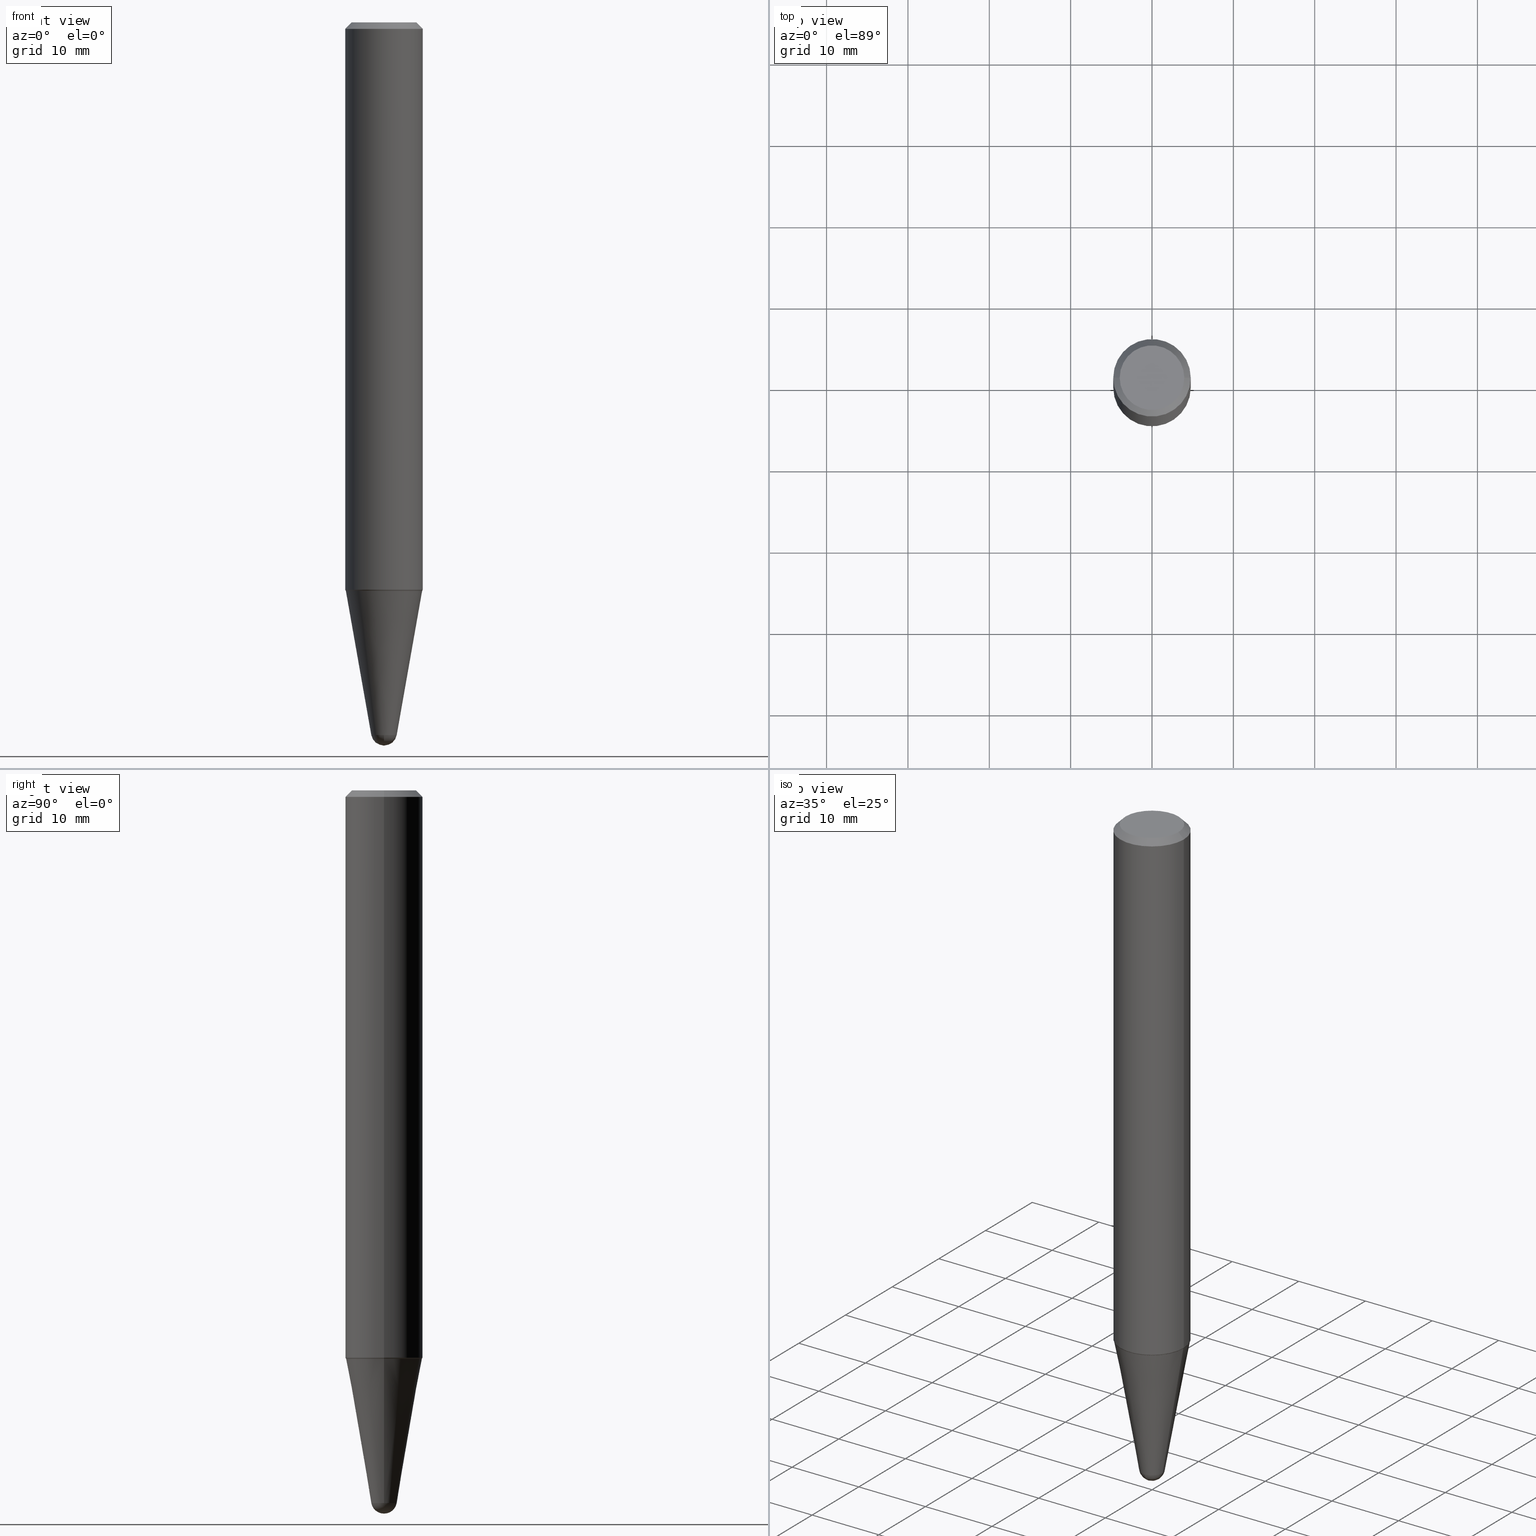
[diagram: canonical four-view strip — front | top / right | iso, engineering-drawing reading convention]
A machine part, canonical four-view strip (front | top / right | iso — engineering-drawing reading convention). The complete STEP part file that produces these views, byte-faithful:
ISO-10303-21;
HEADER;
FILE_DESCRIPTION (( 'STEP AP203' ),
    '1' );
FILE_NAME ('32483.STEP',
    '2024-03-04T15:26:35',
    ( '' ),
    ( '' ),
    'SwSTEP 2.0',
    'SolidWorks 2023',
    '' );
FILE_SCHEMA (( 'CONFIG_CONTROL_DESIGN' ));
ENDSEC;

DATA;
#1 = CARTESIAN_POINT ( 'NONE',  ( 0.1856889624799295535, -1.089648703580485923E-14, -2.749499999999999389 ) ) ;
#2 = VECTOR ( 'NONE', #138, 39.37007874015748143 ) ;
#3 = VERTEX_POINT ( 'NONE', #123 ) ;
#4 = FACE_OUTER_BOUND ( 'NONE', #43, .T. ) ;
#5 = ORIENTED_EDGE ( 'NONE', *, *, #425, .T. ) ;
#6 = ORIENTED_EDGE ( 'NONE', *, *, #195, .T. ) ;
#7 = AXIS2_PLACEMENT_3D ( 'NONE', #351, #434, #143 ) ;
#8 = FACE_OUTER_BOUND ( 'NONE', #262, .T. ) ;
#9 = DIRECTION ( 'NONE',  ( -0.1736481776669304145, 4.672282404182340767E-15, 0.9848077530122080203 ) ) ;
#10 = ORIENTED_EDGE ( 'NONE', *, *, #279, .T. ) ;
#11 = ADVANCED_FACE ( 'NONE', ( #113 ), #200, .T. ) ;
#12 = CARTESIAN_POINT ( 'NONE',  ( -4.373424968893228711E-16, -0.06155048456327506801, -3.448353011104182908 ) ) ;
#13 = ORIENTED_EDGE ( 'NONE', *, *, #273, .T. ) ;
#14 = CIRCLE ( 'NONE', #275, 0.06155048456326336903 ) ;
#15 = AXIS2_PLACEMENT_3D ( 'NONE', #400, #363, #102 ) ;
#16 = CARTESIAN_POINT ( 'NONE',  ( 1.440017168340129706E-44, -2.055962872295446805E-30, -5.888511702533292493E-16 ) ) ;
#17 = ORIENTED_EDGE ( 'NONE', *, *, #25, .F. ) ;
#18 = DIRECTION ( 'NONE',  ( -1.000000000000000000, 6.982962677686265922E-15, -4.883557194083112340E-29 ) ) ;
#19 = ADVANCED_FACE ( 'NONE', ( #415 ), #203, .T. ) ;
#20 = CALENDAR_DATE ( 2024, 4, 3 ) ;
#21 = CARTESIAN_POINT ( 'NONE',  ( 0.1856889624799295535, -1.089648703580485923E-14, -2.749499999999999389 ) ) ;
#22 = AXIS2_PLACEMENT_3D ( 'NONE', #84, #18, #366 ) ;
#23 = CONICAL_SURFACE ( 'NONE', #103, 0.1851889624799291090, 0.7853981633971751641 ) ;
#24 = DIRECTION ( 'NONE',  ( 1.000000000000000000, -6.982962677686260400E-15, 0.000000000000000000 ) ) ;
#25 = EDGE_CURVE ( 'NONE', #109, #199, #164, .T. ) ;
#26 = CALENDAR_DATE ( 2024, 4, 3 ) ;
#27 = DIRECTION ( 'NONE',  ( 1.000000000000000000, -6.982962677686266711E-15, 0.000000000000000000 ) ) ;
#28 = APPROVAL_DATE_TIME ( #341, #450 ) ;
#29 = CARTESIAN_POINT ( 'NONE',  ( 6.723816482606030598E-29, -9.599827941149225989E-15, -2.749499999999999389 ) ) ;
#30 = FACE_OUTER_BOUND ( 'NONE', #272, .T. ) ;
#31 = VECTOR ( 'NONE', #9, 39.37007874015748854 ) ;
#32 = AXIS2_PLACEMENT_3D ( 'NONE', #369, #442, #193 ) ;
#33 = CARTESIAN_POINT ( 'NONE',  ( 0.06155048456326336903, -1.168045736915459686E-14, -3.448353011104182908 ) ) ;
#34 = ADVANCED_FACE ( 'NONE', ( #227 ), #377, .T. ) ;
#35 = DIRECTION ( 'NONE',  ( -2.445468806185136597E-29, 3.491481338843145583E-15, 1.000000000000000000 ) ) ;
#36 = ORIENTED_EDGE ( 'NONE', *, *, #64, .T. ) ;
#37 = DIRECTION ( 'NONE',  ( -2.438088387897960049E-29, 3.491481338843145188E-15, 1.000000000000000000 ) ) ;
#38 = CONICAL_SURFACE ( 'NONE', #359, 0.1856889624799295535, 0.4363323129985916538 ) ;
#39 = VECTOR ( 'NONE', #118, 39.37007874015748143 ) ;
#40 = ADVANCED_FACE ( 'NONE', ( #280 ), #289, .T. ) ;
#41 = PLANE ( 'NONE',  #282 ) ;
#42 = PERSON_AND_ORGANIZATION_ROLE ( 'design_owner' ) ;
#43 = EDGE_LOOP ( 'NONE', ( #80, #414, #334, #219 ) ) ;
#44 = CARTESIAN_POINT ( 'NONE',  ( 0.1846889624799291363, -1.089124981379659235E-14, -2.750000000000000000 ) ) ;
#45 = CARTESIAN_POINT ( 'NONE',  ( -0.06155048456326336903, -1.160251769112441577E-14, -3.448353011104182908 ) ) ;
#46 = LOCAL_TIME ( 10, 26, 35.00000000000000000, #79 ) ;
#47 = FACE_OUTER_BOUND ( 'NONE', #70, .T. ) ;
#48 = CARTESIAN_POINT ( 'NONE',  ( 6.725039217009124520E-29, -9.601573681818649859E-15, -2.750000000000000000 ) ) ;
#49 = APPROVAL ( #207, 'UNSPECIFIED' ) ;
#50 =( NAMED_UNIT ( * ) PLANE_ANGLE_UNIT ( ) SI_UNIT ( $, .RADIAN. ) );
#51 = ORIENTED_EDGE ( 'NONE', *, *, #273, .F. ) ;
#52 = DIRECTION ( 'NONE',  ( -2.445468806185136597E-29, 3.491481338843145583E-15, 1.000000000000000000 ) ) ;
#53 = VERTEX_POINT ( 'NONE', #21 ) ;
#54 = CIRCLE ( 'NONE', #390, 0.1856889624799295535 ) ;
#55 = CALENDAR_DATE ( 2024, 4, 3 ) ;
#56 = EDGE_CURVE ( 'NONE', #215, #87, #259, .T. ) ;
#57 = DIRECTION ( 'NONE',  ( 1.000000000000000000, -6.982962677686265922E-15, 0.000000000000000000 ) ) ;
#58 = DIRECTION ( 'NONE',  ( -2.445468806185136877E-29, 3.491481338843145188E-15, 1.000000000000000000 ) ) ;
#59 = SHAPE_DEFINITION_REPRESENTATION ( #114, #412 ) ;
#60 = AXIS2_PLACEMENT_3D ( 'NONE', #48, #194, #332 ) ;
#61 = CARTESIAN_POINT ( 'NONE',  ( 7.642090019328561499E-31, -1.091087918388484350E-16, -0.03125000000000003469 ) ) ;
#62 = FACE_OUTER_BOUND ( 'NONE', #406, .T. ) ;
#63 = DIRECTION ( 'NONE',  ( -2.445468806185136597E-29, 3.491481338843145583E-15, 1.000000000000000000 ) ) ;
#64 = EDGE_CURVE ( 'NONE', #53, #111, #54, .T. ) ;
#65 = LINE ( 'NONE', #319, #126 ) ;
#66 = AXIS2_PLACEMENT_3D ( 'NONE', #69, #108, #460 ) ;
#67 = APPROVAL_PERSON_ORGANIZATION ( #245, #86, #91 ) ;
#68 = VERTEX_POINT ( 'NONE', #281 ) ;
#69 = CARTESIAN_POINT ( 'NONE',  ( 8.432839721369867924E-29, -1.203986018801382488E-14, -3.448353011104182908 ) ) ;
#70 = EDGE_LOOP ( 'NONE', ( #180, #401, #361, #300 ) ) ;
#71 = FACE_OUTER_BOUND ( 'NONE', #78, .T. ) ;
#72 = CC_DESIGN_PERSON_AND_ORGANIZATION_ASSIGNMENT ( #136, #170, ( #187 ) ) ;
#73 = DIRECTION ( 'NONE',  ( 1.000000000000000000, -6.982962677686265922E-15, 4.876176775795935793E-29 ) ) ;
#74 = ORIENTED_EDGE ( 'NONE', *, *, #350, .T. ) ;
#75 = AXIS2_PLACEMENT_3D ( 'NONE', #287, #186, #218 ) ;
#76 = CIRCLE ( 'NONE', #339, 0.1856889624799295535 ) ;
#77 = DIRECTION ( 'NONE',  ( -2.445468806185136597E-29, 3.491481338843145583E-15, 1.000000000000000000 ) ) ;
#78 = EDGE_LOOP ( 'NONE', ( #340, #121, #197, #308 ) ) ;
#79 = COORDINATED_UNIVERSAL_TIME_OFFSET ( 5, 0, .BEHIND. ) ;
#80 = ORIENTED_EDGE ( 'NONE', *, *, #56, .T. ) ;
#81 = EDGE_CURVE ( 'NONE', #68, #104, #175, .T. ) ;
#82 = VERTEX_POINT ( 'NONE', #348 ) ;
#83 = CARTESIAN_POINT ( 'NONE',  ( -0.1851889624799291090, -8.285726961488016883E-15, -2.750000000000000000 ) ) ;
#84 = CARTESIAN_POINT ( 'NONE',  ( 8.698928373755703197E-29, -1.158290521407307856E-14, -3.437499999999999556 ) ) ;
#85 = EDGE_LOOP ( 'NONE', ( #435, #5 ) ) ;
#86 = APPROVAL ( #418, 'UNSPECIFIED' ) ;
#87 = VERTEX_POINT ( 'NONE', #452 ) ;
#88 = DIRECTION ( 'NONE',  ( -2.445468806185136597E-29, 3.491481338843145583E-15, 1.000000000000000000 ) ) ;
#89 = DATE_AND_TIME ( #26, #184 ) ;
#90 = DIRECTION ( 'NONE',  ( -1.000000000000000000, 6.982962677686266711E-15, 0.000000000000000000 ) ) ;
#91 = APPROVAL_ROLE ( '' ) ;
#92 = CARTESIAN_POINT ( 'NONE',  ( -0.1874999999999999722, -3.515420659890972439E-15, -0.03125000000000003469 ) ) ;
#93 = PERSON_AND_ORGANIZATION_ROLE ( 'creator' ) ;
#94 = AXIS2_PLACEMENT_3D ( 'NONE', #105, #37, #73 ) ;
#95 = LINE ( 'NONE', #380, #321 ) ;
#96 = APPROVAL_DATE_TIME ( #129, #49 ) ;
#97 = CARTESIAN_POINT ( 'NONE',  ( 1.440017168340129706E-44, -2.055962872295446805E-30, -5.888511702533292493E-16 ) ) ;
#98 = CC_DESIGN_PERSON_AND_ORGANIZATION_ASSIGNMENT ( #131, #278, ( #112 ) ) ;
#99 = CARTESIAN_POINT ( 'NONE',  ( 6.725039217009124520E-29, -9.601573681818649859E-15, -2.750000000000000000 ) ) ;
#100 = ORIENTED_EDGE ( 'NONE', *, *, #159, .T. ) ;
#101 = CIRCLE ( 'NONE', #243, 0.06155048456326336903 ) ;
#102 = DIRECTION ( 'NONE',  ( 1.000000000000000000, -6.982962677686268288E-15, 0.000000000000000000 ) ) ;
#103 = AXIS2_PLACEMENT_3D ( 'NONE', #154, #52, #269 ) ;
#104 = VERTEX_POINT ( 'NONE', #92 ) ;
#105 = CARTESIAN_POINT ( 'NONE',  ( 6.725039217009124520E-29, -9.601573681818649859E-15, -2.750000000000000000 ) ) ;
#106 = EDGE_CURVE ( 'NONE', #87, #215, #305, .T. ) ;
#107 = ORIENTED_EDGE ( 'NONE', *, *, #411, .F. ) ;
#108 = DIRECTION ( 'NONE',  ( -2.445468806185136597E-29, 3.491481338843145583E-15, 1.000000000000000000 ) ) ;
#109 = VERTEX_POINT ( 'NONE', #239 ) ;
#110 = LINE ( 'NONE', #176, #391 ) ;
#111 = VERTEX_POINT ( 'NONE', #417 ) ;
#112 = SECURITY_CLASSIFICATION ( '', '', #376 ) ;
#113 = FACE_OUTER_BOUND ( 'NONE', #257, .T. ) ;
#114 = PRODUCT_DEFINITION_SHAPE ( 'NONE', 'NONE',  #187 ) ;
#115 = EDGE_CURVE ( 'NONE', #199, #447, #327, .T. ) ;
#116 =( NAMED_UNIT ( * ) SI_UNIT ( $, .STERADIAN. ) SOLID_ANGLE_UNIT ( ) );
#117 = ORIENTED_EDGE ( 'NONE', *, *, #115, .T. ) ;
#118 = DIRECTION ( 'NONE',  ( -0.7071067811863543939, 7.493145998869656807E-15, 0.7071067811867406405 ) ) ;
#119 = ORIENTED_EDGE ( 'NONE', *, *, #242, .F. ) ;
#120 = AXIS2_PLACEMENT_3D ( 'NONE', #169, #246, #317 ) ;
#121 = ORIENTED_EDGE ( 'NONE', *, *, #106, .T. ) ;
#122 = EDGE_CURVE ( 'NONE', #111, #87, #313, .T. ) ;
#123 = CARTESIAN_POINT ( 'NONE',  ( 0.1562500000000004163, -1.233702489286408510E-15, -5.888511702533211635E-16 ) ) ;
#124 = PERSON_AND_ORGANIZATION ( #284, #201 ) ;
#125 = CARTESIAN_POINT ( 'NONE',  ( 7.642090019328561499E-31, -1.091087918388484350E-16, -0.03125000000000003469 ) ) ;
#126 = VECTOR ( 'NONE', #177, 39.37007874015748854 ) ;
#127 = AXIS2_PLACEMENT_3D ( 'NONE', #61, #210, #27 ) ;
#128 = APPROVAL_PERSON_ORGANIZATION ( #404, #450, #158 ) ;
#129 = DATE_AND_TIME ( #55, #459 ) ;
#130 = CARTESIAN_POINT ( 'NONE',  ( 6.714318813664270048E-29, -9.586267787043478574E-15, -2.745616217504904810 ) ) ;
#131 = PERSON_AND_ORGANIZATION ( #284, #201 ) ;
#132 = EDGE_CURVE ( 'NONE', #215, #68, #95, .T. ) ;
#133 = CARTESIAN_POINT ( 'NONE',  ( -0.1846889624799291363, -8.289279675166815415E-15, -2.750000000000000000 ) ) ;
#134 = DATE_AND_TIME ( #204, #353 ) ;
#135 = LINE ( 'NONE', #458, #2 ) ;
#136 = PERSON_AND_ORGANIZATION ( #284, #201 ) ;
#137 = AXIS2_PLACEMENT_3D ( 'NONE', #229, #371, #445 ) ;
#138 = DIRECTION ( 'NONE',  ( -0.7071067811865487940, 2.468850131082270471E-15, -0.7071067811865462405 ) ) ;
#139 = CARTESIAN_POINT ( 'NONE',  ( -1.450455682483482035E-44, 2.070866303999251778E-30, 5.931196827434296760E-16 ) ) ;
#140 = DIRECTION ( 'NONE',  ( -1.000000000000000000, 6.982962677686265922E-15, -4.876176775795935793E-29 ) ) ;
#141 = ORIENTED_EDGE ( 'NONE', *, *, #106, .F. ) ;
#142 = CLOSED_SHELL ( 'NONE', ( #11, #318, #346, #34, #309, #403, #294, #381, #40, #315 ) ) ;
#143 = DIRECTION ( 'NONE',  ( -7.105427357601000281E-15, -1.000000000000000000, 0.000000000000000000 ) ) ;
#144 = CONICAL_SURFACE ( 'NONE', #15, 0.1856889624799295535, 0.4363323129985916538 ) ;
#145 = ORIENTED_EDGE ( 'NONE', *, *, #396, .F. ) ;
#146 = DIRECTION ( 'NONE',  ( -2.445468806185136597E-29, 3.491481338843145583E-15, 1.000000000000000000 ) ) ;
#147 = ORIENTED_EDGE ( 'NONE', *, *, #153, .F. ) ;
#148 = DIRECTION ( 'NONE',  ( -2.445468806185136597E-29, 3.491481338843145583E-15, 1.000000000000000000 ) ) ;
#149 = MANIFOLD_SOLID_BREP ( 'Body-Move/Copy2[1]', #337 ) ;
#150 = ORIENTED_EDGE ( 'NONE', *, *, #373, .T. ) ;
#151 = CIRCLE ( 'NONE', #182, 0.1562500000000004163 ) ;
#152 = VECTOR ( 'NONE', #198, 39.37007874015748143 ) ;
#153 = EDGE_CURVE ( 'NONE', #338, #288, #234, .T. ) ;
#154 = CARTESIAN_POINT ( 'NONE',  ( 6.725039217009124520E-29, -9.601573681818649859E-15, -2.750000000000000000 ) ) ;
#155 = ORIENTED_EDGE ( 'NONE', *, *, #331, .F. ) ;
#156 = CARTESIAN_POINT ( 'NONE',  ( 8.698928373755703197E-29, -1.158290521407307856E-14, -3.437499999999999556 ) ) ;
#157 = ORIENTED_EDGE ( 'NONE', *, *, #251, .T. ) ;
#158 = APPROVAL_ROLE ( '' ) ;
#159 = EDGE_CURVE ( 'NONE', #265, #82, #101, .T. ) ;
#160 = ORIENTED_EDGE ( 'NONE', *, *, #56, .F. ) ;
#161 = CONICAL_SURFACE ( 'NONE', #120, 0.06155048456326336903, 0.1745329251994330311 ) ;
#162 = DIRECTION ( 'NONE',  ( 1.000000000000000000, -6.982962677686266711E-15, 4.891558762689331823E-29 ) ) ;
#163 = ORIENTED_EDGE ( 'NONE', *, *, #396, .T. ) ;
#164 = LINE ( 'NONE', #45, #31 ) ;
#165 = CARTESIAN_POINT ( 'NONE',  ( 6.714318813664270048E-29, -9.586267787043478574E-15, -2.745616217504904810 ) ) ;
#166 = CIRCLE ( 'NONE', #66, 0.06155048456326336903 ) ;
#167 = ADVANCED_FACE ( 'NONE', ( #30 ), #161, .T. ) ;
#168 = CC_DESIGN_SECURITY_CLASSIFICATION ( #112, ( #250 ) ) ;
#169 = CARTESIAN_POINT ( 'NONE',  ( 8.432839721369867924E-29, -1.203986018801382488E-14, -3.448353011104182908 ) ) ;
#170 = PERSON_AND_ORGANIZATION_ROLE ( 'creator' ) ;
#171 = CARTESIAN_POINT ( 'NONE',  ( 8.432839721369867924E-29, -1.203986018801382488E-14, -3.448353011104182908 ) ) ;
#172 = APPROVAL_ROLE ( '' ) ;
#173 = CC_DESIGN_PERSON_AND_ORGANIZATION_ASSIGNMENT ( #124, #93, ( #250 ) ) ;
#174 = DIRECTION ( 'NONE',  ( -2.445468806185136597E-29, 3.491481338843145583E-15, 1.000000000000000000 ) ) ;
#175 = CIRCLE ( 'NONE', #451, 0.1874999999999999722 ) ;
#176 = CARTESIAN_POINT ( 'NONE',  ( -0.1875000000000001943, 1.332267629550191398E-15, 5.931196827434205055E-16 ) ) ;
#177 = DIRECTION ( 'NONE',  ( 0.1736481776669304145, 2.225859148293765253E-15, 0.9848077530122080203 ) ) ;
#178 = DIMENSIONAL_EXPONENTS ( 1.000000000000000000, 0.000000000000000000, 0.000000000000000000, 0.000000000000000000, 0.000000000000000000, 0.000000000000000000, 0.000000000000000000 ) ;
#179 = DIRECTION ( 'NONE',  ( 1.000000000000000000, -6.982962677686260400E-15, 0.000000000000000000 ) ) ;
#180 = ORIENTED_EDGE ( 'NONE', *, *, #462, .F. ) ;
#181 = CC_DESIGN_DATE_AND_TIME_ASSIGNMENT ( #134, #347, ( #112 ) ) ;
#182 = AXIS2_PLACEMENT_3D ( 'NONE', #97, #247, #213 ) ;
#183 = CARTESIAN_POINT ( 'NONE',  ( -1.450455682483482035E-44, 2.070866303999251778E-30, 5.931196827434296760E-16 ) ) ;
#184 = LOCAL_TIME ( 10, 26, 35.00000000000000000, #382 ) ;
#185 = ORIENTED_EDGE ( 'NONE', *, *, #122, .F. ) ;
#186 = DIRECTION ( 'NONE',  ( 2.438088387897960049E-29, -3.491481338843145188E-15, -1.000000000000000000 ) ) ;
#187 = PRODUCT_DEFINITION ( 'UNKNOWN', '', #250, #402 ) ;
#188 = LINE ( 'NONE', #266, #152 ) ;
#189 = CIRCLE ( 'NONE', #416, 0.1851889624799291090 ) ;
#190 = EDGE_LOOP ( 'NONE', ( #36, #233, #160, #364 ) ) ;
#191 = VECTOR ( 'NONE', #224, 39.37007874015748143 ) ;
#192 = AXIS2_PLACEMENT_3D ( 'NONE', #183, #324, #374 ) ;
#193 = DIRECTION ( 'NONE',  ( 1.000000000000000000, 0.000000000000000000, 0.000000000000000000 ) ) ;
#194 = DIRECTION ( 'NONE',  ( -2.445468806185136597E-29, 3.491481338843145583E-15, 1.000000000000000000 ) ) ;
#195 = EDGE_CURVE ( 'NONE', #288, #338, #189, .T. ) ;
#196 = MECHANICAL_CONTEXT ( 'NONE', #244, 'mechanical' ) ;
#197 = ORIENTED_EDGE ( 'NONE', *, *, #132, .T. ) ;
#198 = DIRECTION ( 'NONE',  ( 0.7071067811865487940, -7.319954787623260779E-15, -0.7071067811865462405 ) ) ;
#199 = VERTEX_POINT ( 'NONE', #133 ) ;
#200 = CONICAL_SURFACE ( 'NONE', #389, 0.1874999999999999722, 0.7853981633974501664 ) ;
#201 = ORGANIZATION ( 'UNSPECIFIED', 'UNSPECIFIED', '' ) ;
#202 = COORDINATED_UNIVERSAL_TIME_OFFSET ( 5, 0, .BEHIND. ) ;
#203 = SPHERICAL_SURFACE ( 'NONE', #22, 0.06250000000000012490 ) ;
#204 = CALENDAR_DATE ( 2024, 4, 3 ) ;
#205 = CARTESIAN_POINT ( 'NONE',  ( 6.725039217009124520E-29, -9.601573681818649859E-15, -2.750000000000000000 ) ) ;
#206 = EDGE_CURVE ( 'NONE', #104, #68, #226, .T. ) ;
#207 = APPROVAL_STATUS ( 'not_yet_approved' ) ;
#208 = CARTESIAN_POINT ( 'NONE',  ( 6.725039217009124520E-29, -9.601573681818649859E-15, -2.750000000000000000 ) ) ;
#209 = AXIS2_PLACEMENT_3D ( 'NONE', #208, #344, #57 ) ;
#210 = DIRECTION ( 'NONE',  ( -2.445468806185136597E-29, 3.491481338843145583E-15, 1.000000000000000000 ) ) ;
#211 = ADVANCED_FACE ( 'NONE', ( #62 ), #367, .T. ) ;
#212 = DIRECTION ( 'NONE',  ( 1.000000000000000000, -6.982962677686268288E-15, 0.000000000000000000 ) ) ;
#213 = DIRECTION ( 'NONE',  ( 1.000000000000000000, -6.982962677686266711E-15, 4.891558762689331823E-29 ) ) ;
#214 = AXIS2_PLACEMENT_3D ( 'NONE', #252, #35, #179 ) ;
#215 = VERTEX_POINT ( 'NONE', #457 ) ;
#216 = DIRECTION ( 'NONE',  ( 1.000000000000000000, -6.982962677686260400E-15, 0.000000000000000000 ) ) ;
#217 = EDGE_CURVE ( 'NONE', #223, #104, #135, .T. ) ;
#218 = DIRECTION ( 'NONE',  ( -1.000000000000000000, 6.982962677686265922E-15, -4.876176775795935793E-29 ) ) ;
#219 = ORIENTED_EDGE ( 'NONE', *, *, #132, .F. ) ;
#220 = AXIS2_PLACEMENT_3D ( 'NONE', #171, #349, #316 ) ;
#221 = CARTESIAN_POINT ( 'NONE',  ( 6.723816482606030598E-29, -9.599827941149225989E-15, -2.749499999999999389 ) ) ;
#222 = DIRECTION ( 'NONE',  ( 1.000000000000000000, -6.982962677686268288E-15, 0.000000000000000000 ) ) ;
#223 = VERTEX_POINT ( 'NONE', #427 ) ;
#224 = DIRECTION ( 'NONE',  ( 0.7071067811863543939, -2.468850131080234027E-15, 0.7071067811867406405 ) ) ;
#225 = EDGE_LOOP ( 'NONE', ( #6, #163, #270, #440 ) ) ;
#226 = CIRCLE ( 'NONE', #127, 0.1874999999999999722 ) ;
#227 = FACE_OUTER_BOUND ( 'NONE', #225, .T. ) ;
#228 =( GEOMETRIC_REPRESENTATION_CONTEXT ( 3 ) GLOBAL_UNCERTAINTY_ASSIGNED_CONTEXT ( ( #362 ) ) GLOBAL_UNIT_ASSIGNED_CONTEXT ( ( #413, #50, #116 ) ) REPRESENTATION_CONTEXT ( 'NONE', 'WORKASPACE' ) );
#229 = CARTESIAN_POINT ( 'NONE',  ( 8.698928373755703197E-29, -1.158290521407307856E-14, -3.437499999999999556 ) ) ;
#230 = ORIENTED_EDGE ( 'NONE', *, *, #206, .T. ) ;
#231 = ORIENTED_EDGE ( 'NONE', *, *, #331, .T. ) ;
#232 = APPLICATION_PROTOCOL_DEFINITION ( 'international standard', 'config_control_design', 1994, #237 ) ;
#233 = ORIENTED_EDGE ( 'NONE', *, *, #122, .T. ) ;
#234 = CIRCLE ( 'NONE', #209, 0.1851889624799291090 ) ;
#235 = AXIS2_PLACEMENT_3D ( 'NONE', #16, #335, #162 ) ;
#236 = EDGE_CURVE ( 'NONE', #223, #3, #151, .T. ) ;
#237 = APPLICATION_CONTEXT ( 'configuration controlled 3d designs of mechanical parts and assemblies' ) ;
#238 = DIRECTION ( 'NONE',  ( 1.000000000000000000, -6.982962677686269866E-15, 0.000000000000000000 ) ) ;
#239 = CARTESIAN_POINT ( 'NONE',  ( -0.06155048456326336903, -9.945898683145615595E-15, -3.448353011104182908 ) ) ;
#240 = APPROVAL_DATE_TIME ( #314, #86 ) ;
#241 = CARTESIAN_POINT ( 'NONE',  ( 8.432839721369867924E-29, -1.203986018801382488E-14, -3.448353011104182908 ) ) ;
#242 = EDGE_CURVE ( 'NONE', #441, #446, #399, .T. ) ;
#243 = AXIS2_PLACEMENT_3D ( 'NONE', #241, #63, #24 ) ;
#244 = APPLICATION_CONTEXT ( 'configuration controlled 3d designs of mechanical parts and assemblies' ) ;
#245 = PERSON_AND_ORGANIZATION ( #284, #201 ) ;
#246 = DIRECTION ( 'NONE',  ( -2.445468806185136597E-29, 3.491481338843145583E-15, 1.000000000000000000 ) ) ;
#247 = DIRECTION ( 'NONE',  ( -2.445468806185136597E-29, 3.491481338843145583E-15, 1.000000000000000000 ) ) ;
#248 = FACE_OUTER_BOUND ( 'NONE', #358, .T. ) ;
#249 = CIRCLE ( 'NONE', #430, 0.1846889624799291363 ) ;
#250 = PRODUCT_DEFINITION_FORMATION_WITH_SPECIFIED_SOURCE ( 'ANY', '', #407, .NOT_KNOWN. ) ;
#251 = EDGE_CURVE ( 'NONE', #82, #109, #14, .T. ) ;
#252 = CARTESIAN_POINT ( 'NONE',  ( 8.432839721369867924E-29, -1.203986018801382488E-14, -3.448353011104182908 ) ) ;
#253 = ORIENTED_EDGE ( 'NONE', *, *, #115, .F. ) ;
#254 = CYLINDRICAL_SURFACE ( 'NONE', #384, 0.1875000000000001943 ) ;
#255 = ORIENTED_EDGE ( 'NONE', *, *, #195, .F. ) ;
#256 = DIRECTION ( 'NONE',  ( 1.000000000000000000, -6.982962677686268288E-15, 0.000000000000000000 ) ) ;
#257 = EDGE_LOOP ( 'NONE', ( #433, #306, #405, #330 ) ) ;
#258 = EDGE_CURVE ( 'NONE', #446, #265, #166, .T. ) ;
#259 = CIRCLE ( 'NONE', #408, 0.1875000000000003608 ) ;
#260 = CARTESIAN_POINT ( 'NONE',  ( -0.1851889624799291090, -8.283077734313903315E-15, -2.750000000000000000 ) ) ;
#261 = CIRCLE ( 'NONE', #214, 0.06155048456326336903 ) ;
#262 = EDGE_LOOP ( 'NONE', ( #145, #375, #388, #155 ) ) ;
#263 = APPLICATION_PROTOCOL_DEFINITION ( 'international standard', 'config_control_design', 1994, #244 ) ;
#264 = ORIENTED_EDGE ( 'NONE', *, *, #217, .T. ) ;
#265 = VERTEX_POINT ( 'NONE', #33 ) ;
#266 = CARTESIAN_POINT ( 'NONE',  ( 0.1874999999999999722, -1.395452166421010480E-15, -0.03125000000000003469 ) ) ;
#267 = CC_DESIGN_DATE_AND_TIME_ASSIGNMENT ( #89, #283, ( #187 ) ) ;
#268 = EDGE_LOOP ( 'NONE', ( #107, #410, #264, #230 ) ) ;
#269 = DIRECTION ( 'NONE',  ( 1.000000000000000000, -6.982962677686265922E-15, 0.000000000000000000 ) ) ;
#270 = ORIENTED_EDGE ( 'NONE', *, *, #64, .F. ) ;
#271 = CARTESIAN_POINT ( 'NONE',  ( 0.1851889624799291090, -1.089474129513543694E-14, -2.750000000000000000 ) ) ;
#272 = EDGE_LOOP ( 'NONE', ( #157, #398, #372, #51, #100 ) ) ;
#273 = EDGE_CURVE ( 'NONE', #265, #447, #65, .T. ) ;
#274 = DIRECTION ( 'NONE',  ( -2.445468806185136597E-29, 3.491481338843145583E-15, 1.000000000000000000 ) ) ;
#275 = AXIS2_PLACEMENT_3D ( 'NONE', #461, #146, #216 ) ;
#276 = APPROVAL_PERSON_ORGANIZATION ( #277, #49, #172 ) ;
#277 = PERSON_AND_ORGANIZATION ( #284, #201 ) ;
#278 = PERSON_AND_ORGANIZATION_ROLE ( 'classification_officer' ) ;
#279 = EDGE_CURVE ( 'NONE', #447, #199, #249, .T. ) ;
#280 = FACE_OUTER_BOUND ( 'NONE', #268, .T. ) ;
#281 = CARTESIAN_POINT ( 'NONE',  ( 0.1874999999999999722, -1.418414293905023123E-15, -0.03125000000000003469 ) ) ;
#282 = AXIS2_PLACEMENT_3D ( 'NONE', #397, #291, #140 ) ;
#283 = DATE_TIME_ROLE ( 'creation_date' ) ;
#284 = PERSON ( 'UNSPECIFIED', 'UNSPECIFIED', 'UNSPECIFIED', ('UNSPECIFIED'), ('UNSPECIFIED'), ('UNSPECIFIED') ) ;
#285 = DIRECTION ( 'NONE',  ( 1.000000000000000000, -6.982962677686266711E-15, 0.000000000000000000 ) ) ;
#286 = DIRECTION ( 'NONE',  ( -2.445468806185136877E-29, 3.491481338843145188E-15, 1.000000000000000000 ) ) ;
#287 = CARTESIAN_POINT ( 'NONE',  ( 7.200085841700648531E-45, -1.027981436147723403E-30, -2.944255851266646246E-16 ) ) ;
#288 = VERTEX_POINT ( 'NONE', #293 ) ;
#289 = CONICAL_SURFACE ( 'NONE', #352, 0.1874999999999999722, 0.7853981633974501664 ) ;
#290 = LOCAL_TIME ( 10, 26, 35.00000000000000000, #202 ) ;
#291 = DIRECTION ( 'NONE',  ( 2.438088387897960049E-29, -3.491481338843145188E-15, -1.000000000000000000 ) ) ;
#292 = ORIENTED_EDGE ( 'NONE', *, *, #258, .F. ) ;
#293 = CARTESIAN_POINT ( 'NONE',  ( 0.1851889624799291090, -1.089474129513543694E-14, -2.750000000000000000 ) ) ;
#294 = ADVANCED_FACE ( 'NONE', ( #295 ), #38, .T. ) ;
#295 = FACE_OUTER_BOUND ( 'NONE', #395, .T. ) ;
#296 = ORIENTED_EDGE ( 'NONE', *, *, #258, .T. ) ;
#297 = LINE ( 'NONE', #83, #39 ) ;
#298 = CC_DESIGN_APPROVAL ( #86, ( #112 ) ) ;
#299 = LENGTH_MEASURE_WITH_UNIT ( LENGTH_MEASURE( 0.02539999999999999897 ), #302 );
#300 = ORIENTED_EDGE ( 'NONE', *, *, #251, .F. ) ;
#301 = ADVANCED_FACE ( 'NONE', ( #248 ), #41, .F. ) ;
#302 =( LENGTH_UNIT ( ) NAMED_UNIT ( * ) SI_UNIT ( $, .METRE. ) );
#303 = DIRECTION ( 'NONE',  ( -1.000000000000000000, 6.982962677686266711E-15, 0.000000000000000000 ) ) ;
#304 = PERSON_AND_ORGANIZATION ( #284, #201 ) ;
#305 = CIRCLE ( 'NONE', #437, 0.1875000000000003608 ) ;
#306 = ORIENTED_EDGE ( 'NONE', *, *, #411, .T. ) ;
#307 = SPHERICAL_SURFACE ( 'NONE', #379, 0.06250000000000012490 ) ;
#308 = ORIENTED_EDGE ( 'NONE', *, *, #206, .F. ) ;
#309 = ADVANCED_FACE ( 'NONE', ( #392 ), #326, .F. ) ;
#310 = MANIFOLD_SOLID_BREP ( 'Body-Move/Copy2[2]', #142 ) ;
#311 = CARTESIAN_POINT ( 'NONE',  ( 7.642090019328561499E-31, -1.091087918388484350E-16, -0.03125000000000003469 ) ) ;
#312 = DIRECTION ( 'NONE',  ( -2.445468806185136597E-29, 3.491481338843145583E-15, 1.000000000000000000 ) ) ;
#313 = LINE ( 'NONE', #386, #424 ) ;
#314 = DATE_AND_TIME ( #20, #290 ) ;
#315 = ADVANCED_FACE ( 'NONE', ( #354 ), #432, .F. ) ;
#316 = DIRECTION ( 'NONE',  ( 1.000000000000000000, -6.982962677686260400E-15, 0.000000000000000000 ) ) ;
#317 = DIRECTION ( 'NONE',  ( 1.000000000000000000, -6.982962677686260400E-15, 0.000000000000000000 ) ) ;
#318 = ADVANCED_FACE ( 'NONE', ( #4 ), #254, .T. ) ;
#319 = CARTESIAN_POINT ( 'NONE',  ( 0.06155048456326336903, -1.246966492451259664E-14, -3.448353011104182908 ) ) ;
#320 = LINE ( 'NONE', #1, #322 ) ;
#321 = VECTOR ( 'NONE', #58, 39.37007874015748143 ) ;
#322 = VECTOR ( 'NONE', #394, 39.37007874015748143 ) ;
#323 = EDGE_CURVE ( 'NONE', #87, #104, #110, .T. ) ;
#324 = DIRECTION ( 'NONE',  ( -2.445468806185136597E-29, 3.491481338843145583E-15, 1.000000000000000000 ) ) ;
#325 = EDGE_LOOP ( 'NONE', ( #119, #356, #444, #292 ) ) ;
#326 = PLANE ( 'NONE',  #94 ) ;
#327 = CIRCLE ( 'NONE', #345, 0.1846889624799291363 ) ;
#328 = DIRECTION ( 'NONE',  ( 6.982962677686265922E-15, 1.000000000000000000, 0.000000000000000000 ) ) ;
#329 = CIRCLE ( 'NONE', #137, 0.06250000000000012490 ) ;
#330 = ORIENTED_EDGE ( 'NONE', *, *, #217, .F. ) ;
#331 = EDGE_CURVE ( 'NONE', #111, #53, #76, .T. ) ;
#332 = DIRECTION ( 'NONE',  ( 1.000000000000000000, -6.982962677686265922E-15, 0.000000000000000000 ) ) ;
#333 = APPROVAL_STATUS ( 'not_yet_approved' ) ;
#334 = ORIENTED_EDGE ( 'NONE', *, *, #81, .F. ) ;
#335 = DIRECTION ( 'NONE',  ( -2.445468806185136597E-29, 3.491481338843145583E-15, 1.000000000000000000 ) ) ;
#336 = CC_DESIGN_PERSON_AND_ORGANIZATION_ASSIGNMENT ( #304, #42, ( #407 ) ) ;
#337 = CLOSED_SHELL ( 'NONE', ( #167, #456, #19, #211, #301 ) ) ;
#338 = VERTEX_POINT ( 'NONE', #260 ) ;
#339 = AXIS2_PLACEMENT_3D ( 'NONE', #429, #355, #222 ) ;
#340 = ORIENTED_EDGE ( 'NONE', *, *, #323, .F. ) ;
#341 = DATE_AND_TIME ( #426, #46 ) ;
#342 = DIRECTION ( 'NONE',  ( 2.445468806185136597E-29, -3.491481338843145583E-15, -1.000000000000000000 ) ) ;
#343 = PERSON_AND_ORGANIZATION_ROLE ( 'design_supplier' ) ;
#344 = DIRECTION ( 'NONE',  ( -2.445468806185136597E-29, 3.491481338843145583E-15, 1.000000000000000000 ) ) ;
#345 = AXIS2_PLACEMENT_3D ( 'NONE', #205, #88, #212 ) ;
#346 = ADVANCED_FACE ( 'NONE', ( #428 ), #144, .T. ) ;
#347 = DATE_TIME_ROLE ( 'classification_date' ) ;
#348 = CARTESIAN_POINT ( 'NONE',  ( 4.298047364988575990E-16, 0.06155048456325139944, -3.448353011104182908 ) ) ;
#349 = DIRECTION ( 'NONE',  ( -2.445468806185136597E-29, 3.491481338843145583E-15, 1.000000000000000000 ) ) ;
#350 = EDGE_CURVE ( 'NONE', #109, #446, #261, .T. ) ;
#351 = CARTESIAN_POINT ( 'NONE',  ( 8.698928373755703197E-29, -1.158290521407307856E-14, -3.437499999999999556 ) ) ;
#352 = AXIS2_PLACEMENT_3D ( 'NONE', #311, #342, #90 ) ;
#353 = LOCAL_TIME ( 10, 26, 35.00000000000000000, #421 ) ;
#354 = FACE_OUTER_BOUND ( 'NONE', #85, .T. ) ;
#355 = DIRECTION ( 'NONE',  ( -2.445468806185136597E-29, 3.491481338843145583E-15, 1.000000000000000000 ) ) ;
#356 = ORIENTED_EDGE ( 'NONE', *, *, #462, .T. ) ;
#357 = CYLINDRICAL_SURFACE ( 'NONE', #192, 0.1875000000000001943 ) ;
#358 = EDGE_LOOP ( 'NONE', ( #10, #117 ) ) ;
#359 = AXIS2_PLACEMENT_3D ( 'NONE', #221, #387, #256 ) ;
#360 = DIRECTION ( 'NONE',  ( 1.000000000000000000, -6.982962677686268288E-15, 0.000000000000000000 ) ) ;
#361 = ORIENTED_EDGE ( 'NONE', *, *, #350, .F. ) ;
#362 = UNCERTAINTY_MEASURE_WITH_UNIT (LENGTH_MEASURE( 1.000000000000000082E-05 ), #413, 'distance_accuracy_value', 'NONE');
#363 = DIRECTION ( 'NONE',  ( -2.445468806185136597E-29, 3.491481338843145583E-15, 1.000000000000000000 ) ) ;
#364 = ORIENTED_EDGE ( 'NONE', *, *, #373, .F. ) ;
#365 = CARTESIAN_POINT ( 'NONE',  ( 8.854442568795960594E-29, -1.179729577650343892E-14, -3.500000000000000000 ) ) ;
#366 = DIRECTION ( 'NONE',  ( 6.982962677686265922E-15, 1.000000000000000000, 0.000000000000000000 ) ) ;
#367 = CONICAL_SURFACE ( 'NONE', #220, 0.06155048456326336903, 0.1745329251994330311 ) ;
#368 = CC_DESIGN_APPROVAL ( #450, ( #187 ) ) ;
#369 = CARTESIAN_POINT ( 'NONE',  ( 0.000000000000000000, 0.000000000000000000, 0.000000000000000000 ) ) ;
#370 = DIRECTION ( 'NONE',  ( 2.445468806185136597E-29, -3.491481338843145583E-15, -1.000000000000000000 ) ) ;
#371 = DIRECTION ( 'NONE',  ( 1.000000000000000000, -6.982962677686265922E-15, 4.883557194083112340E-29 ) ) ;
#372 = ORIENTED_EDGE ( 'NONE', *, *, #279, .F. ) ;
#373 = EDGE_CURVE ( 'NONE', #53, #215, #320, .T. ) ;
#374 = DIRECTION ( 'NONE',  ( 1.000000000000000000, -6.982962677686265922E-15, 4.852736867747361162E-29 ) ) ;
#375 = ORIENTED_EDGE ( 'NONE', *, *, #153, .T. ) ;
#376 = SECURITY_CLASSIFICATION_LEVEL ( 'unclassified' ) ;
#377 = CONICAL_SURFACE ( 'NONE', #60, 0.1851889624799291090, 0.7853981633971751641 ) ;
#378 = CARTESIAN_POINT ( 'NONE',  ( 7.642090019328561499E-31, -1.091087918388484350E-16, -0.03125000000000003469 ) ) ;
#379 = AXIS2_PLACEMENT_3D ( 'NONE', #156, #409, #328 ) ;
#380 = CARTESIAN_POINT ( 'NONE',  ( 0.1875000000000001943, -1.309305502066174022E-15, 5.931196827434387479E-16 ) ) ;
#381 = ADVANCED_FACE ( 'NONE', ( #71 ), #357, .T. ) ;
#382 = COORDINATED_UNIVERSAL_TIME_OFFSET ( 5, 0, .BEHIND. ) ;
#383 = DIRECTION ( 'NONE',  ( -2.445468806185136597E-29, 3.491481338843145583E-15, 1.000000000000000000 ) ) ;
#384 = AXIS2_PLACEMENT_3D ( 'NONE', #139, #148, #436 ) ;
#385 = CARTESIAN_POINT ( 'NONE',  ( 6.725039217009124520E-29, -9.601573681818649859E-15, -2.750000000000000000 ) ) ;
#386 = CARTESIAN_POINT ( 'NONE',  ( -0.1856889624799295535, -8.280428507139788170E-15, -2.749499999999999389 ) ) ;
#387 = DIRECTION ( 'NONE',  ( -2.445468806185136597E-29, 3.491481338843145583E-15, 1.000000000000000000 ) ) ;
#388 = ORIENTED_EDGE ( 'NONE', *, *, #419, .T. ) ;
#389 = AXIS2_PLACEMENT_3D ( 'NONE', #378, #370, #303 ) ;
#390 = AXIS2_PLACEMENT_3D ( 'NONE', #29, #174, #449 ) ;
#391 = VECTOR ( 'NONE', #286, 39.37007874015748143 ) ;
#392 = FACE_OUTER_BOUND ( 'NONE', #393, .T. ) ;
#393 = EDGE_LOOP ( 'NONE', ( #255, #147 ) ) ;
#394 = DIRECTION ( 'NONE',  ( 0.4226182617407078790, 2.132291770426688021E-16, 0.9063077870366459399 ) ) ;
#395 = EDGE_LOOP ( 'NONE', ( #185, #231, #150, #141 ) ) ;
#396 = EDGE_CURVE ( 'NONE', #338, #111, #297, .T. ) ;
#397 = CARTESIAN_POINT ( 'NONE',  ( 6.725039217009124520E-29, -9.601573681818649859E-15, -2.750000000000000000 ) ) ;
#398 = ORIENTED_EDGE ( 'NONE', *, *, #25, .T. ) ;
#399 = CIRCLE ( 'NONE', #7, 0.06250000000000012490 ) ;
#400 = CARTESIAN_POINT ( 'NONE',  ( 6.723816482606030598E-29, -9.599827941149225989E-15, -2.749499999999999389 ) ) ;
#401 = ORIENTED_EDGE ( 'NONE', *, *, #242, .T. ) ;
#402 = DESIGN_CONTEXT ( 'detailed design', #237, 'design' ) ;
#403 = ADVANCED_FACE ( 'NONE', ( #8 ), #23, .T. ) ;
#404 = PERSON_AND_ORGANIZATION ( #284, #201 ) ;
#405 = ORIENTED_EDGE ( 'NONE', *, *, #81, .T. ) ;
#406 = EDGE_LOOP ( 'NONE', ( #17, #74, #296, #13, #253 ) ) ;
#407 = PRODUCT ( '32483', '32483', '', ( #196 ) ) ;
#408 = AXIS2_PLACEMENT_3D ( 'NONE', #165, #312, #238 ) ;
#409 = DIRECTION ( 'NONE',  ( -1.000000000000000000, 6.982962677686265922E-15, -4.883557194083112340E-29 ) ) ;
#410 = ORIENTED_EDGE ( 'NONE', *, *, #236, .F. ) ;
#411 = EDGE_CURVE ( 'NONE', #3, #68, #188, .T. ) ;
#412 = ADVANCED_BREP_SHAPE_REPRESENTATION ( '32483', ( #149, #310, #32 ), #228 ) ;
#413 =( CONVERSION_BASED_UNIT ( 'INCH', #299 ) LENGTH_UNIT ( ) NAMED_UNIT ( #178 ) );
#414 = ORIENTED_EDGE ( 'NONE', *, *, #323, .T. ) ;
#415 = FACE_OUTER_BOUND ( 'NONE', #325, .T. ) ;
#416 = AXIS2_PLACEMENT_3D ( 'NONE', #385, #383, #455 ) ;
#417 = CARTESIAN_POINT ( 'NONE',  ( -0.1856889624799295535, -8.280428507139788170E-15, -2.749499999999999389 ) ) ;
#418 = APPROVAL_STATUS ( 'not_yet_approved' ) ;
#419 = EDGE_CURVE ( 'NONE', #288, #53, #439, .T. ) ;
#420 = DIRECTION ( 'NONE',  ( -2.445468806185136597E-29, 3.491481338843145583E-15, 1.000000000000000000 ) ) ;
#421 = COORDINATED_UNIVERSAL_TIME_OFFSET ( 5, 0, .BEHIND. ) ;
#422 = DIRECTION ( 'NONE',  ( -0.4226182617407078790, 6.167240084480883365E-15, 0.9063077870366459399 ) ) ;
#423 = DIRECTION ( 'NONE',  ( 1.000000000000000000, -6.982962677686269866E-15, 0.000000000000000000 ) ) ;
#424 = VECTOR ( 'NONE', #422, 39.37007874015748143 ) ;
#425 = EDGE_CURVE ( 'NONE', #3, #223, #453, .T. ) ;
#426 = CALENDAR_DATE ( 2024, 4, 3 ) ;
#427 = CARTESIAN_POINT ( 'NONE',  ( -0.1562500000000004163, 1.145642314307903329E-15, -5.888511702533370393E-16 ) ) ;
#428 = FACE_OUTER_BOUND ( 'NONE', #190, .T. ) ;
#429 = CARTESIAN_POINT ( 'NONE',  ( 6.723816482606030598E-29, -9.599827941149225989E-15, -2.749499999999999389 ) ) ;
#430 = AXIS2_PLACEMENT_3D ( 'NONE', #99, #77, #360 ) ;
#431 = CC_DESIGN_PERSON_AND_ORGANIZATION_ASSIGNMENT ( #454, #343, ( #250 ) ) ;
#432 = PLANE ( 'NONE',  #75 ) ;
#433 = ORIENTED_EDGE ( 'NONE', *, *, #425, .F. ) ;
#434 = DIRECTION ( 'NONE',  ( -1.000000000000000000, 7.105427357601001070E-15, -4.926315508542082329E-29 ) ) ;
#435 = ORIENTED_EDGE ( 'NONE', *, *, #236, .T. ) ;
#436 = DIRECTION ( 'NONE',  ( 1.000000000000000000, -6.982962677686265922E-15, 4.852736867747361162E-29 ) ) ;
#437 = AXIS2_PLACEMENT_3D ( 'NONE', #130, #420, #423 ) ;
#438 = CC_DESIGN_APPROVAL ( #49, ( #250 ) ) ;
#439 = LINE ( 'NONE', #271, #191 ) ;
#440 = ORIENTED_EDGE ( 'NONE', *, *, #419, .F. ) ;
#441 = VERTEX_POINT ( 'NONE', #365 ) ;
#442 = DIRECTION ( 'NONE',  ( 0.000000000000000000, 0.000000000000000000, 1.000000000000000000 ) ) ;
#443 = PRODUCT_RELATED_PRODUCT_CATEGORY ( 'detail', '', ( #407 ) ) ;
#444 = ORIENTED_EDGE ( 'NONE', *, *, #159, .F. ) ;
#445 = DIRECTION ( 'NONE',  ( 6.982962677686265133E-15, 1.000000000000000000, 0.000000000000000000 ) ) ;
#446 = VERTEX_POINT ( 'NONE', #12 ) ;
#447 = VERTEX_POINT ( 'NONE', #44 ) ;
#448 = COORDINATED_UNIVERSAL_TIME_OFFSET ( 5, 0, .BEHIND. ) ;
#449 = DIRECTION ( 'NONE',  ( 1.000000000000000000, -6.982962677686268288E-15, 0.000000000000000000 ) ) ;
#450 = APPROVAL ( #333, 'UNSPECIFIED' ) ;
#451 = AXIS2_PLACEMENT_3D ( 'NONE', #125, #274, #285 ) ;
#452 = CARTESIAN_POINT ( 'NONE',  ( -0.1875000000000003608, -8.254000157493289148E-15, -2.745616217504904810 ) ) ;
#453 = CIRCLE ( 'NONE', #235, 0.1562500000000004163 ) ;
#454 = PERSON_AND_ORGANIZATION ( #284, #201 ) ;
#455 = DIRECTION ( 'NONE',  ( 1.000000000000000000, -6.982962677686265922E-15, 0.000000000000000000 ) ) ;
#456 = ADVANCED_FACE ( 'NONE', ( #47 ), #307, .T. ) ;
#457 = CARTESIAN_POINT ( 'NONE',  ( 0.1875000000000003608, -1.089557328910965674E-14, -2.745616217504904810 ) ) ;
#458 = CARTESIAN_POINT ( 'NONE',  ( -0.1874999999999999722, 1.200196710227326499E-15, -0.03125000000000003469 ) ) ;
#459 = LOCAL_TIME ( 10, 26, 35.00000000000000000, #448 ) ;
#460 = DIRECTION ( 'NONE',  ( 1.000000000000000000, -6.982962677686260400E-15, 0.000000000000000000 ) ) ;
#461 = CARTESIAN_POINT ( 'NONE',  ( 8.432839721369867924E-29, -1.203986018801382488E-14, -3.448353011104182908 ) ) ;
#462 = EDGE_CURVE ( 'NONE', #441, #82, #329, .T. ) ;
ENDSEC;
END-ISO-10303-21;
